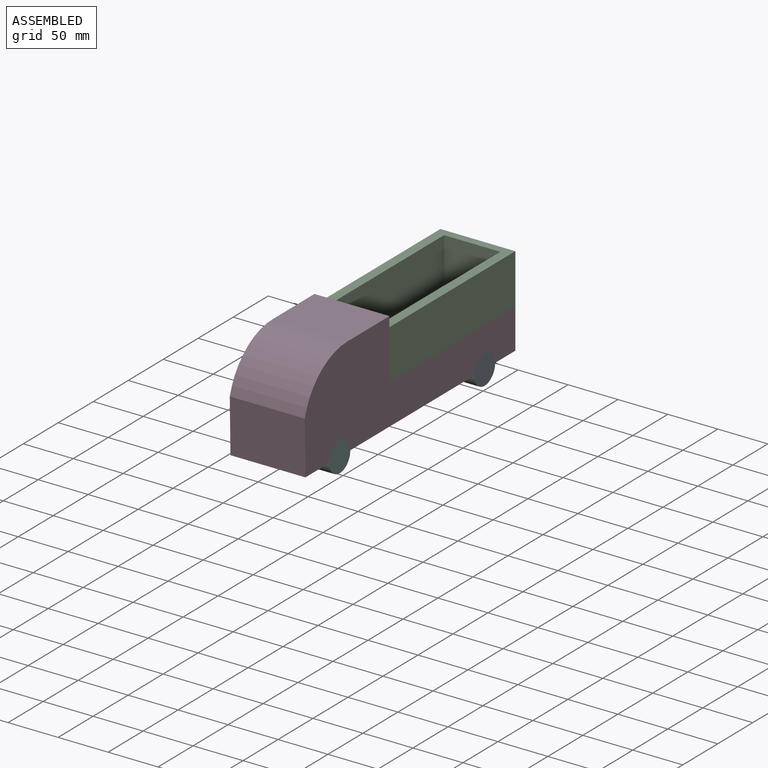
[diagram: assembled view]
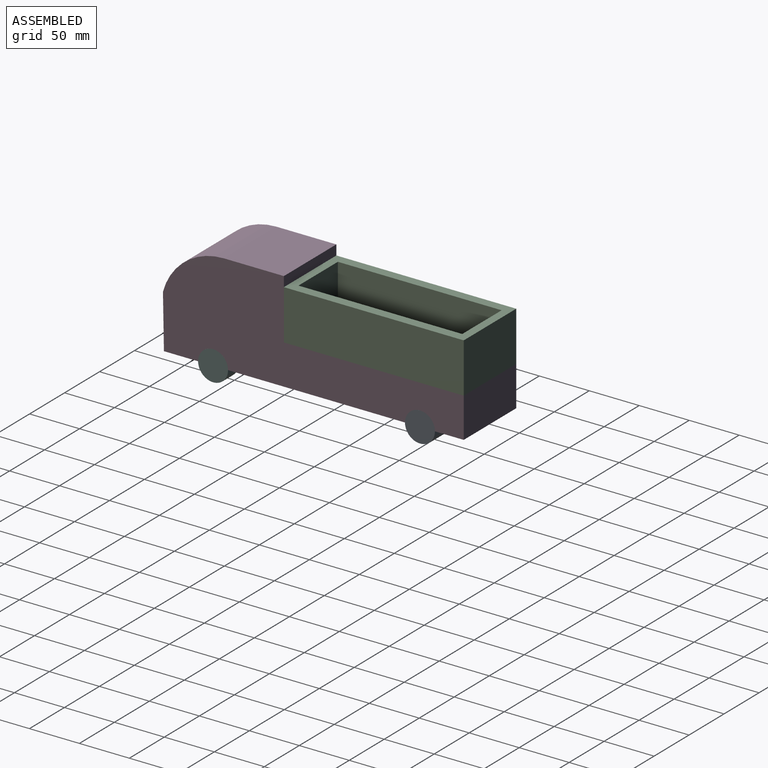
[diagram: assembled view, second angle]
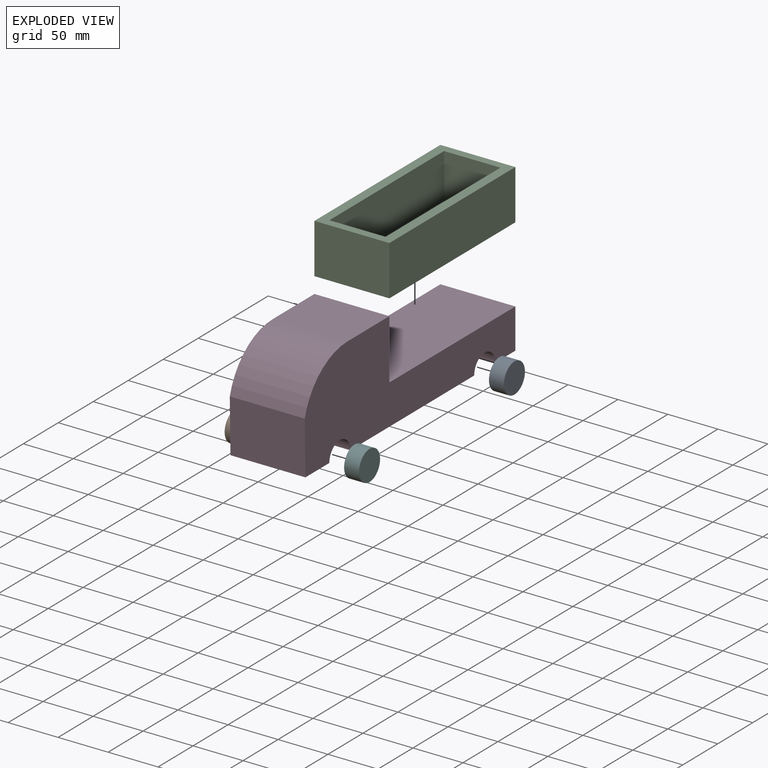
[diagram: exploded view]
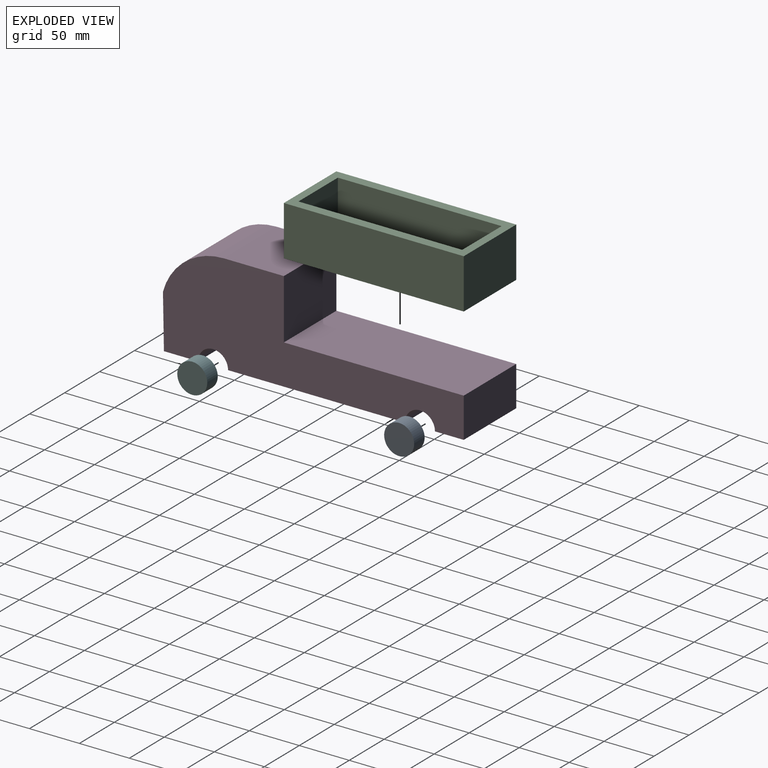
[diagram: exploded view, second angle]
ASSEMBLY  parts=6 mates=5
PART A: 3 faces, bbox 15x30x30 mm
  f0: cylinder r=15mm len=30mm, axis (-1,0,0), area 1413.7mm2, adj f1,f2
  f1: plane 30x30mm, normal (1,0,0), area 706.9mm2, adj f0
  f2: plane 30x30mm, normal (-1,0,0), area 706.9mm2, adj f0
PART B: same geometry as A
PART C: 11 faces, bbox 75x180x50 mm
  f0: plane 180x75mm, normal (0,0,1), area 4272mm2, adj f2,f3,f4,f5,f6,f7,f8,f9
  f1: plane 180x75mm, normal (0,0,-1), area 13500mm2, adj f2,f3,f4,f5
  f2: plane 75x50mm, normal (0,1,0), area 3750mm2, adj f0,f1,f4,f5
  f3: plane 75x50mm, normal (0,-1,0), area 3750mm2, adj f0,f1,f4,f5
  f4: plane 180x50mm, normal (1,0,0), area 9000mm2, adj f0,f1,f2,f3
  f5: plane 180x50mm, normal (-1,0,0), area 9000mm2, adj f0,f1,f2,f3
  f6: plane 56.31x45mm, normal (0,1,0), area 2534.1mm2, adj f0,f7,f9,f10
  f7: plane 163.87x45mm, normal (-1,0,0), area 7374.2mm2, adj f0,f6,f8,f10
  f8: plane 56.31x45mm, normal (0,-1,0), area 2534.1mm2, adj f0,f7,f9,f10
  f9: plane 163.87x45mm, normal (1,0,0), area 7374.2mm2, adj f0,f6,f8,f10
  f10: plane 163.87x56.31mm, normal (0,0,1), area 9228mm2, adj f6,f7,f8,f9
PART D: 13 faces, bbox 75x301x100 mm
  f0: cylinder r=15mm len=75mm, axis (-1,0,0), area 3534.3mm2, adj f1,f10,f11,f12
  f1: plane 177.01x75mm, normal (0,0,-1), area 13275.8mm2, adj f0,f2,f11,f12
  f2: cylinder r=15mm len=75mm, axis (-1,0,0), area 3534.3mm2, adj f1,f3,f11,f12
  f3: plane 75x28.8mm, normal (0,0,-1), area 2159.7mm2, adj f2,f4,f11,f12
  f4: plane 75x40mm, normal (0,1,0), area 3000mm2, adj f3,f5,f11,f12
  f5: plane 180x75mm, normal (0,0,1), area 13500mm2, adj f4,f6,f11,f12
  f6: plane 75x60mm, normal (0,1,0), area 4500mm2, adj f5,f7,f11,f12
  f7: plane 75x60mm, normal (0,0,1), area 4500mm2, adj f6,f8,f11,f12
  f8: cylinder r=63.25mm len=75mm, axis (-1,0,0), area 6177mm2, adj f7,f9,f11,f12
  f9: plane 75x53.54mm, normal (0,-1,-0.02), area 4016.1mm2, adj f8,f10,f11,f12
  f10: plane 75x34.19mm, normal (0,0,-1), area 2564.5mm2, adj f0,f9,f11,f12
  f11: plane 300.98x100mm, normal (1,0,0), area 17824.5mm2, adj f0,f1,f2,f3,f4,f5,f6,f7
  f12: plane 300.98x100mm, normal (-1,0,0), area 17824.5mm2, adj f0,f1,f2,f3,f4,f5,f6,f7
PART E: same geometry as A
PART F: same geometry as A
PLACE A t=(-128.59,136.24,125.9)mm
PLACE B t=(-188.59,-70.77,125.9)mm
PLACE C t=(-188.59,90.03,190.9)mm
PLACE D t=(-188.59,30.03,175.9)mm
PLACE E t=(-188.59,136.24,125.9)mm
PLACE F t=(-128.59,-70.77,125.9)mm
MATE fastened B.f0 <-> D.f0  axis (-1,0,0) through (-188.59,-70.77,125.9)mm
MATE fastened A.f0 <-> D.f2  axis (1,0,0) through (-113.59,136.24,125.9)mm
MATE fastened E.f0 <-> D.f2  axis (-1,0,0) through (-188.59,136.24,125.9)mm
MATE fastened C.f1 <-> D.f5  axis (0,0,-1) through (-151.09,90.03,165.9)mm
MATE fastened F.f0 <-> D.f0  axis (1,0,0) through (-113.59,-70.77,125.9)mm
